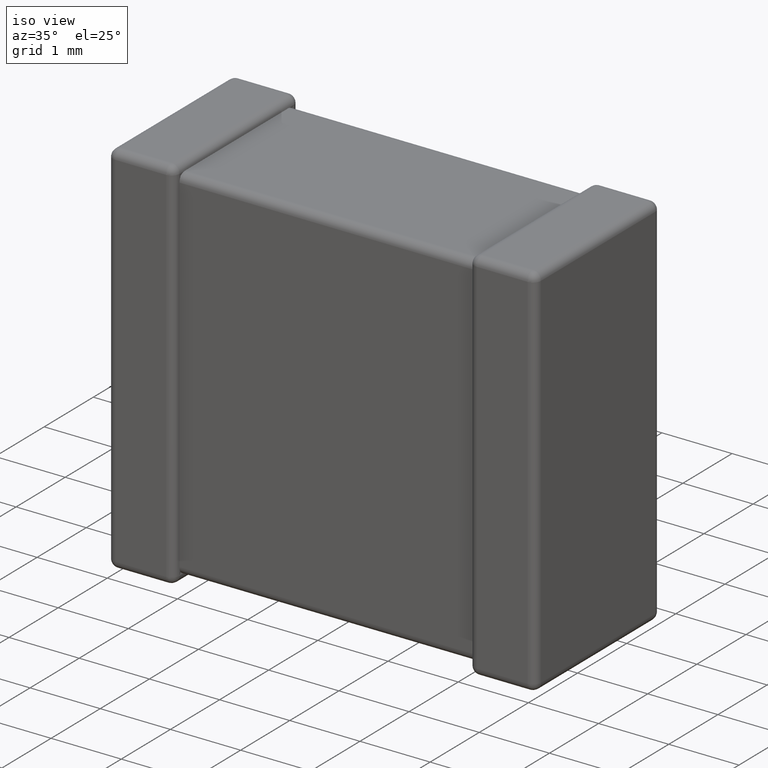
[diagram: clean part render]
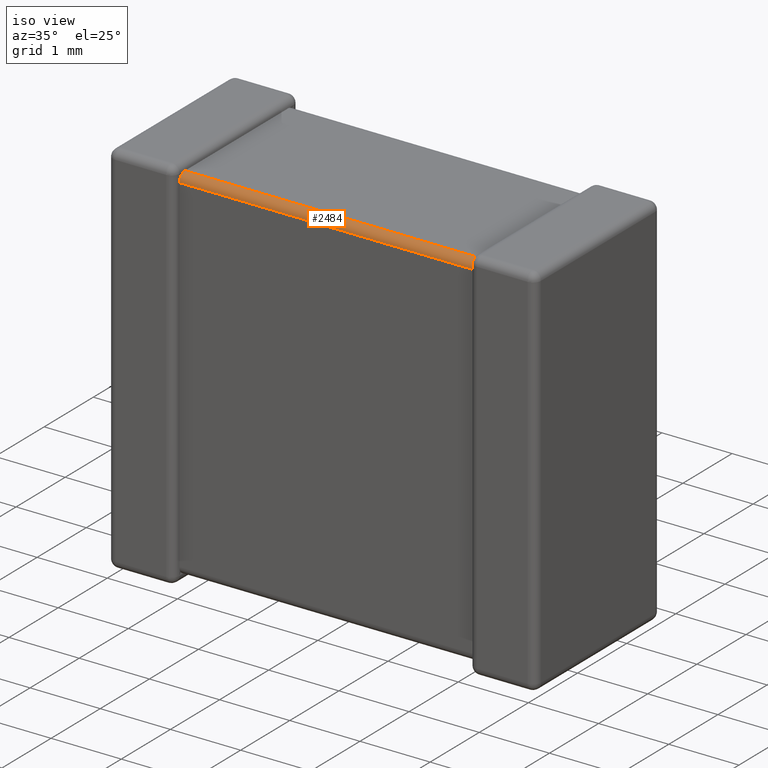
[diagram: same view with one face highlighted and labeled with its STEP entity id]
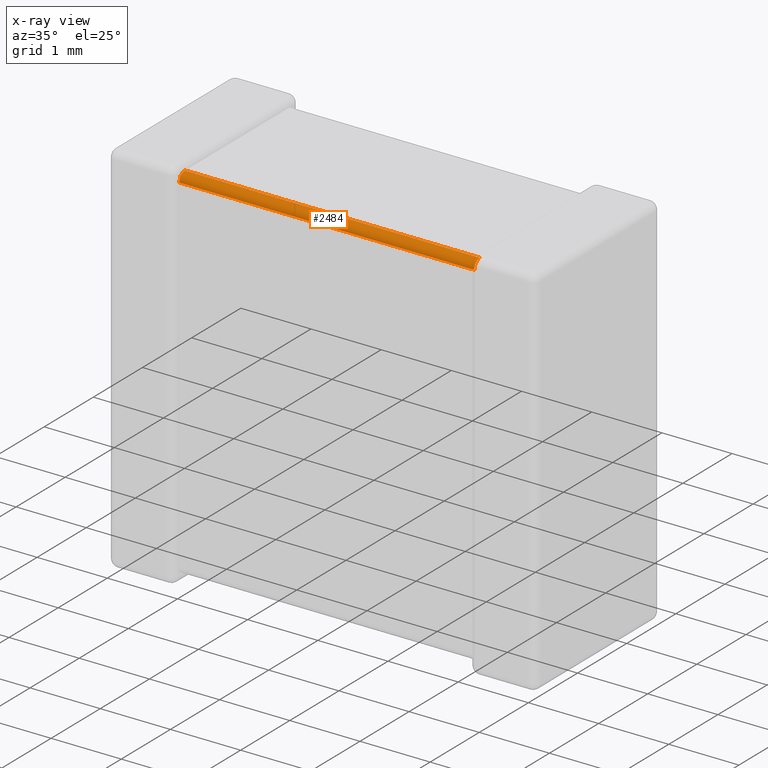
[diagram: x-ray of the same camera — body ghosted, the highlighted face saturated]
A machine part, iso view. The second image highlights one B-rep face of the part: STEP entity #2484.
The next image is the same camera in x-ray: the body ghosted, the highlighted face saturated — about 0% of this face is hidden behind the body in this view.
In plain terms, the highlighted cylindrical surface (edge-blend (fillet) strip) has radius 0.1123 mm, axis along (1, 0, -0).
Its self-contained STEP definition (entity closure, byte-faithful):
#32 = EDGE_LOOP ( 'NONE', ( #1709, #1230, #1873, #2965, #2233, #1332 ) ) ;
#73 = EDGE_CURVE ( 'NONE', #4429, #3466, #2473, .T. ) ;
#127 = DIRECTION ( 'NONE',  ( 1.000000000000000000, 1.032573497605242300E-016, -2.065146995210484400E-016 ) ) ;
#129 = CARTESIAN_POINT ( 'NONE',  ( 0.9499691003102169700, 0.1955092100933714400, -0.1155294750999373300 ) ) ;
#179 = CARTESIAN_POINT ( 'NONE',  ( 0.9498276882378322600, 0.1185391979312376700, -0.1877834917502287100 ) ) ;
#197 = CARTESIAN_POINT ( 'NONE',  ( 0.9473702207239088600, 0.1364827373767571200, -0.1550405786893537500 ) ) ;
#295 = CARTESIAN_POINT ( 'NONE',  ( 5.150399240127526000, 0.1760033854232497500, -0.1226312837360372700 ) ) ;
#369 = CYLINDRICAL_SURFACE ( 'NONE', #2548, 0.1123200000000000000 ) ;
#457 = B_SPLINE_CURVE_WITH_KNOTS ( 'NONE', 3,
 ( #3372, #1973, #1928, #1959, #1946, #129, #4108, #2352, #3744, #1208 ),
 .UNSPECIFIED., .F., .F.,
 ( 4, 3, 3, 4 ),
 ( 0.0000000000000000000, 3.535348412143801800E-005, 7.052049924266516200E-005, 8.790586026857606700E-005 ),
 .UNSPECIFIED. ) ;
#509 = CARTESIAN_POINT ( 'NONE',  ( 0.9496007598724637300, 0.1226312837360388100, -0.1760033854232460900 ) ) ;
#616 = CARTESIAN_POINT ( 'NONE',  ( 5.154925775900062000, 0.1452177663371263000, -0.1452177663371271300 ) ) ;
#628 = CARTESIAN_POINT ( 'NONE',  ( 5.152431037062773300, 0.1370737319058238900, -0.1533618007684297600 ) ) ;
#839 = CARTESIAN_POINT ( 'NONE',  ( 0.9500000000000002900, 0.2246399999999999500, -0.1123199999999982300 ) ) ;
#903 = CARTESIAN_POINT ( 'NONE',  ( 0.9467686591984204600, 0.1392136124212923200, -0.1515815489451577100 ) ) ;
#976 = FACE_OUTER_BOUND ( 'NONE', #32, .T. ) ;
#983 = LINE ( 'NONE', #4043, #2578 ) ;
#1078 = VERTEX_POINT ( 'NONE', #4366 ) ;
#1208 = CARTESIAN_POINT ( 'NONE',  ( 0.9500000000000002900, 0.2246399999999999500, -0.1123199999999982300 ) ) ;
#1230 = ORIENTED_EDGE ( 'NONE', *, *, #3710, .F. ) ;
#1270 = CARTESIAN_POINT ( 'NONE',  ( 0.9460158448510883600, 0.1421438606851708500, -0.1482916719885580500 ) ) ;
#1320 = CARTESIAN_POINT ( 'NONE',  ( 5.153231340801570000, 0.1515815489451600200, -0.1392136124212912400 ) ) ;
#1332 = ORIENTED_EDGE ( 'NONE', *, *, #2641, .F. ) ;
#1339 = CARTESIAN_POINT ( 'NONE',  ( 5.149945626467079800, 0.1995509800254701400, -0.1144514952914930800 ) ) ;
#1614 = LINE ( 'NONE', #839, #2010 ) ;
#1627 = CARTESIAN_POINT ( 'NONE',  ( 0.9490570754601861400, 0.1288250177456430900, -0.1647401363566821700 ) ) ;
#1658 = EDGE_CURVE ( 'NONE', #1700, #4429, #1614, .T. ) ;
#1696 = VERTEX_POINT ( 'NONE', #2305 ) ;
#1700 = VERTEX_POINT ( 'NONE', #2350 ) ;
#1709 = ORIENTED_EDGE ( 'NONE', *, *, #2712, .F. ) ;
#1873 = ORIENTED_EDGE ( 'NONE', *, *, #2526, .F. ) ;
#1928 = CARTESIAN_POINT ( 'NONE',  ( 0.9487412343930049500, 0.1631224660761786400, -0.1299304188900645100 ) ) ;
#1946 = CARTESIAN_POINT ( 'NONE',  ( 0.9499139314811390100, 0.1840563693920421700, -0.1192533956990774900 ) ) ;
#1959 = CARTESIAN_POINT ( 'NONE',  ( 0.9493285855785246200, 0.1736073159615746900, -0.1245827785722858900 ) ) ;
#1973 = CARTESIAN_POINT ( 'NONE',  ( 0.9475689629372176000, 0.1533618007684275100, -0.1370737319058242800 ) ) ;
#2010 = VECTOR ( 'NONE', #127, 1000.000000000000000 ) ;
#2087 = B_SPLINE_CURVE_WITH_KNOTS ( 'NONE', 3,
 ( #616, #628, #3141, #4318, #2833, #2146, #3903, #3935, #2791, #2091 ),
 .UNSPECIFIED., .F., .F.,
 ( 4, 3, 3, 4 ),
 ( 0.0000000000000000000, 3.535348412143877700E-005, 7.052049924266680200E-005, 8.790586026857381700E-005 ),
 .UNSPECIFIED. ) ;
#2091 = CARTESIAN_POINT ( 'NONE',  ( 5.150000000000000400, 0.1123200000000003900, -0.2246400000000007800 ) ) ;
#2138 = CARTESIAN_POINT ( 'NONE',  ( 5.154925775900062000, 0.1452177663371263000, -0.1452177663371271300 ) ) ;
#2146 = CARTESIAN_POINT ( 'NONE',  ( 5.150030899689774300, 0.1155294750999384000, -0.1955092100933746600 ) ) ;
#2233 = ORIENTED_EDGE ( 'NONE', *, *, #1658, .F. ) ;
#2288 = CARTESIAN_POINT ( 'NONE',  ( 0.9450742240999298000, 0.1452177663371252100, -0.1452177663371269400 ) ) ;
#2305 = CARTESIAN_POINT ( 'NONE',  ( 0.9499999999999998400, 0.1123199999999999500, -0.2246399999999999000 ) ) ;
#2350 = CARTESIAN_POINT ( 'NONE',  ( 0.9500000000000002900, 0.2246399999999999500, -0.1123199999999982300 ) ) ;
#2352 = CARTESIAN_POINT ( 'NONE',  ( 0.9500027774523847100, 0.2128991596773413000, -0.1127816437192382400 ) ) ;
#2369 = CARTESIAN_POINT ( 'NONE',  ( 5.150000000000000400, 0.2246400000000003900, -0.1123199999999990900 ) ) ;
#2473 = B_SPLINE_CURVE_WITH_KNOTS ( 'NONE', 3,
 ( #2369, #4263, #1339, #3503, #295, #3874, #3890, #1320, #4238, #2740 ),
 .UNSPECIFIED., .F., .F.,
 ( 4, 3, 3, 4 ),
 ( 0.0000000000000000000, 3.737793887600307700E-005, 7.483306597327566400E-005, 8.800504568266326800E-005 ),
 .UNSPECIFIED. ) ;
#2484 = ADVANCED_FACE ( 'NONE', ( #976 ), #369, .T. ) ;
#2526 = EDGE_CURVE ( 'NONE', #3466, #3929, #2087, .T. ) ;
#2548 = AXIS2_PLACEMENT_3D ( 'NONE', #4178, #4576, #4197 ) ;
#2578 = VECTOR ( 'NONE', #3662, 1000.000000000000000 ) ;
#2641 = EDGE_CURVE ( 'NONE', #1078, #1700, #457, .T. ) ;
#2675 = CARTESIAN_POINT ( 'NONE',  ( 0.9499999999999998400, 0.1123199999999999500, -0.2121806870413376900 ) ) ;
#2699 = CARTESIAN_POINT ( 'NONE',  ( 0.9500543735329112200, 0.1144514952914940700, -0.1995509800254672000 ) ) ;
#2712 = EDGE_CURVE ( 'NONE', #1696, #1078, #3510, .T. ) ;
#2740 = CARTESIAN_POINT ( 'NONE',  ( 5.154925775900062000, 0.1452177663371263000, -0.1452177663371271300 ) ) ;
#2791 = CARTESIAN_POINT ( 'NONE',  ( 5.150000000000000400, 0.1123200000000003900, -0.2187785217711352100 ) ) ;
#2833 = CARTESIAN_POINT ( 'NONE',  ( 5.150086068518851900, 0.1192533956990781500, -0.1840563693920451700 ) ) ;
#2965 = ORIENTED_EDGE ( 'NONE', *, *, #73, .F. ) ;
#3141 = CARTESIAN_POINT ( 'NONE',  ( 5.151258765606986100, 0.1299304188900644600, -0.1631224660761811400 ) ) ;
#3173 = CARTESIAN_POINT ( 'NONE',  ( 5.150000000000000400, 0.2246400000000003900, -0.1123199999999990900 ) ) ;
#3372 = CARTESIAN_POINT ( 'NONE',  ( 0.9450742240999298000, 0.1452177663371252100, -0.1452177663371269400 ) ) ;
#3466 = VERTEX_POINT ( 'NONE', #2138 ) ;
#3503 = CARTESIAN_POINT ( 'NONE',  ( 5.150172311762158700, 0.1877834917502320100, -0.1185391979312364100 ) ) ;
#3510 = B_SPLINE_CURVE_WITH_KNOTS ( 'NONE', 3,
 ( #3793, #2675, #2699, #179, #509, #1627, #197, #903, #1270, #2288 ),
 .UNSPECIFIED., .F., .F.,
 ( 4, 3, 3, 4 ),
 ( 1.648736087515688700E-018, 3.737793887600425600E-005, 7.483306597327821200E-005, 8.800504568265941900E-005 ),
 .UNSPECIFIED. ) ;
#3662 = DIRECTION ( 'NONE',  ( -1.000000000000000000, -1.032573497605242300E-016, 2.065146995210485200E-016 ) ) ;
#3710 = EDGE_CURVE ( 'NONE', #3929, #1696, #983, .T. ) ;
#3744 = CARTESIAN_POINT ( 'NONE',  ( 0.9499999999999914100, 0.2187785217711346600, -0.1123199999999982300 ) ) ;
#3793 = CARTESIAN_POINT ( 'NONE',  ( 0.9499999999999998400, 0.1123199999999999500, -0.2246399999999999000 ) ) ;
#3874 = CARTESIAN_POINT ( 'NONE',  ( 5.150942924539803500, 0.1647401363566860800, -0.1288250177456411700 ) ) ;
#3890 = CARTESIAN_POINT ( 'NONE',  ( 5.152629779276081100, 0.1550405786893578100, -0.1364827373767547600 ) ) ;
#3903 = CARTESIAN_POINT ( 'NONE',  ( 5.150008434677453700, 0.1136964791315140400, -0.2071095243275099500 ) ) ;
#3929 = VERTEX_POINT ( 'NONE', #4127 ) ;
#3935 = CARTESIAN_POINT ( 'NONE',  ( 5.149997222547606100, 0.1127816437192401700, -0.2128991596773432700 ) ) ;
#4043 = CARTESIAN_POINT ( 'NONE',  ( 0.9500000000000009500, 0.1123199999999999500, -0.2246399999999981700 ) ) ;
#4108 = CARTESIAN_POINT ( 'NONE',  ( 0.9499915653225373700, 0.2071095243275065900, -0.1136964791315125400 ) ) ;
#4127 = CARTESIAN_POINT ( 'NONE',  ( 5.150000000000000400, 0.1123200000000003900, -0.2246400000000007800 ) ) ;
#4178 = CARTESIAN_POINT ( 'NONE',  ( 0.9500000000000002900, 0.2246399999999999500, -0.2246399999999982300 ) ) ;
#4197 = DIRECTION ( 'NONE',  ( 0.0000000000000000000, 0.0000000000000000000, -1.000000000000000000 ) ) ;
#4238 = CARTESIAN_POINT ( 'NONE',  ( 5.153984155148902100, 0.1482916719885588000, -0.1421438606851712400 ) ) ;
#4263 = CARTESIAN_POINT ( 'NONE',  ( 5.150000000000000400, 0.2121806870413402700, -0.1123199999999990900 ) ) ;
#4318 = CARTESIAN_POINT ( 'NONE',  ( 5.150671414421466900, 0.1245827785722862100, -0.1736073159615774100 ) ) ;
#4366 = CARTESIAN_POINT ( 'NONE',  ( 0.9450742240999298000, 0.1452177663371252100, -0.1452177663371269400 ) ) ;
#4429 = VERTEX_POINT ( 'NONE', #3173 ) ;
#4576 = DIRECTION ( 'NONE',  ( 1.000000000000000000, 1.032573497605242300E-016, -2.065146995210484700E-016 ) ) ;